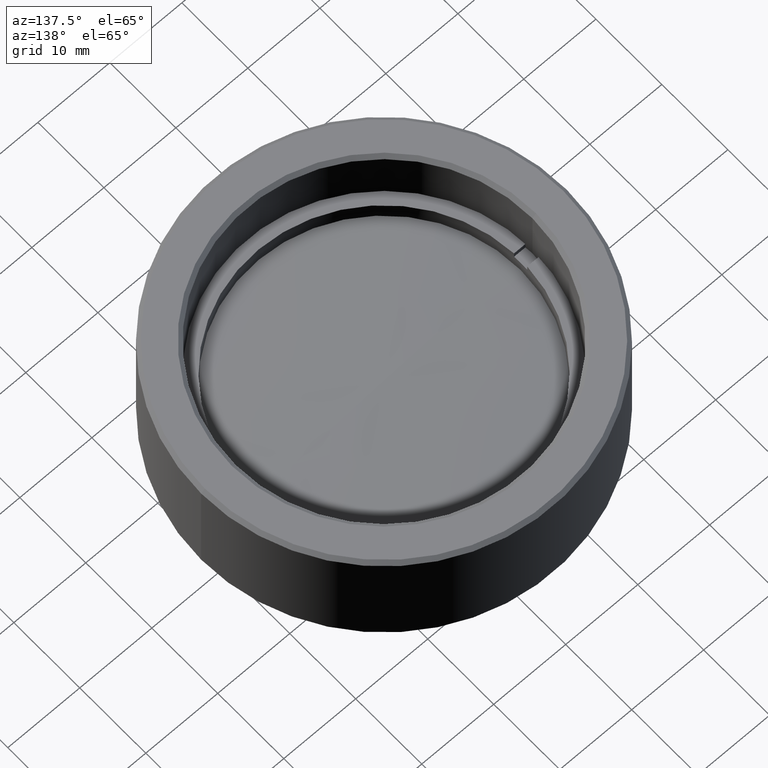
[diagram: clean part render]
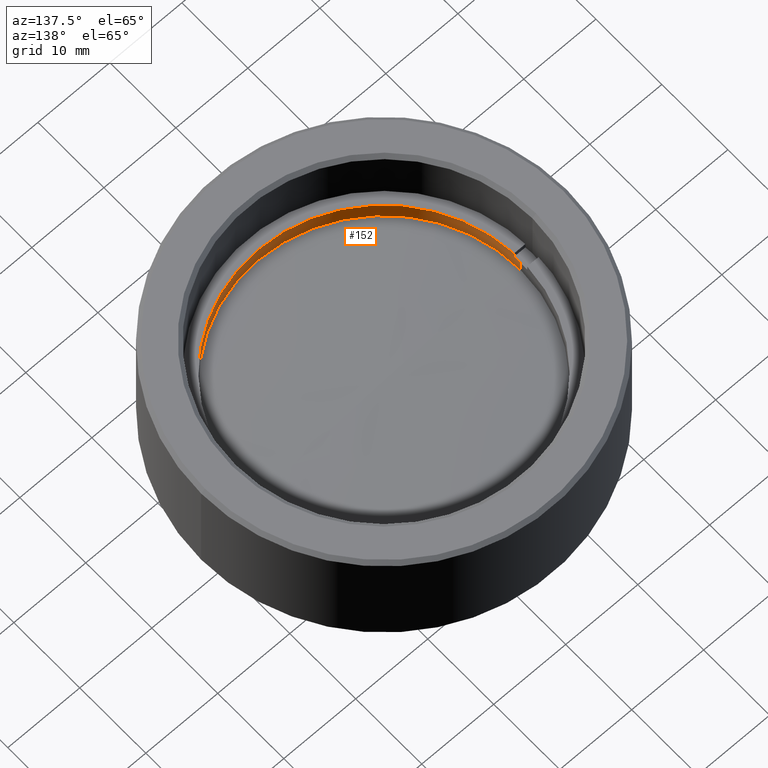
[diagram: same view with one face highlighted and labeled with its STEP entity id]
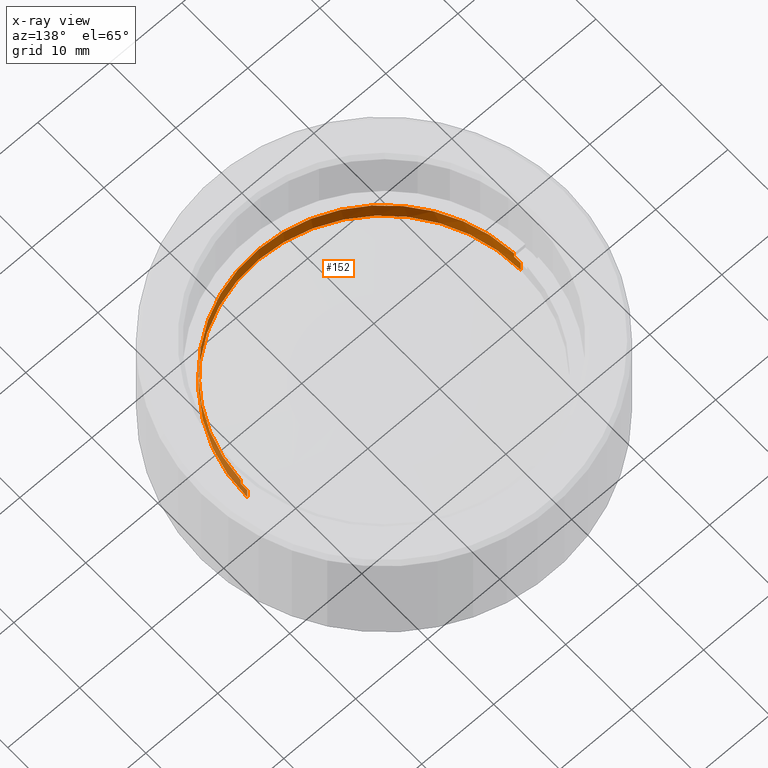
[diagram: x-ray of the same camera — body ghosted, the highlighted face saturated]
A machine part, auxiliary view. The second image highlights one B-rep face of the part: STEP entity #152.
The next image is the same camera in x-ray: the body ghosted, the highlighted face saturated — about 10% of this face is hidden behind the body in this view.
In plain terms, the highlighted cylindrical surface (partial cylindrical patch) has radius 19 mm, axis along (-0, -0, -1).
Its self-contained STEP definition (entity closure, byte-faithful):
#28 = EDGE_CURVE ( 'NONE', #1716, #1417, #1293, .T. ) ;
#31 = CARTESIAN_POINT ( 'NONE',  ( 0.000000000000000000, 0.000000000000000000, 0.000000000000000000 ) ) ;
#32 = CARTESIAN_POINT ( 'NONE',  ( 0.000000000000000000, 0.000000000000000000, 1.700000000000000178 ) ) ;
#71 = CARTESIAN_POINT ( 'NONE',  ( -18.97366596101027625, -1.000000000000000000, 1.700000000000000178 ) ) ;
#150 = VECTOR ( 'NONE', #1667, 1000.000000000000000 ) ;
#152 = ADVANCED_FACE ( 'NONE', ( #1619 ), #928, .F. ) ;
#155 = CARTESIAN_POINT ( 'NONE',  ( -18.97366596101027625, -1.000000000000000000, 2.500000000000000000 ) ) ;
#175 = DIRECTION ( 'NONE',  ( 1.000000000000000000, 0.000000000000000000, 0.000000000000000000 ) ) ;
#301 = ORIENTED_EDGE ( 'NONE', *, *, #939, .F. ) ;
#316 = CARTESIAN_POINT ( 'NONE',  ( -19.00000000000000000, 0.000000000000000000, 0.000000000000000000 ) ) ;
#351 = ORIENTED_EDGE ( 'NONE', *, *, #395, .T. ) ;
#357 = AXIS2_PLACEMENT_3D ( 'NONE', #32, #576, #436 ) ;
#370 = AXIS2_PLACEMENT_3D ( 'NONE', #1346, #1465, #523 ) ;
#375 = CIRCLE ( 'NONE', #1134, 19.00000000000000000 ) ;
#395 = EDGE_CURVE ( 'NONE', #1447, #629, #1513, .T. ) ;
#422 = ORIENTED_EDGE ( 'NONE', *, *, #694, .T. ) ;
#430 = DIRECTION ( 'NONE',  ( 0.000000000000000000, 0.000000000000000000, 1.000000000000000000 ) ) ;
#436 = DIRECTION ( 'NONE',  ( 1.000000000000000000, 0.000000000000000000, 0.000000000000000000 ) ) ;
#441 = CARTESIAN_POINT ( 'NONE',  ( 18.97366596101027625, -1.000000000000000000, 2.500000000000000000 ) ) ;
#523 = DIRECTION ( 'NONE',  ( -1.000000000000000000, 0.000000000000000000, 0.000000000000000000 ) ) ;
#549 = CARTESIAN_POINT ( 'NONE',  ( 18.97366596101027625, -1.000000000000000000, 1.700000000000000178 ) ) ;
#576 = DIRECTION ( 'NONE',  ( -0.000000000000000000, 0.000000000000000000, 1.000000000000000000 ) ) ;
#599 = EDGE_LOOP ( 'NONE', ( #1482, #1188, #301, #1449, #422, #741, #351, #1698 ) ) ;
#618 = VERTEX_POINT ( 'NONE', #71 ) ;
#629 = VERTEX_POINT ( 'NONE', #736 ) ;
#678 = DIRECTION ( 'NONE',  ( -0.000000000000000000, -0.000000000000000000, -1.000000000000000000 ) ) ;
#689 = VECTOR ( 'NONE', #1504, 1000.000000000000000 ) ;
#694 = EDGE_CURVE ( 'NONE', #1131, #618, #1654, .T. ) ;
#710 = LINE ( 'NONE', #964, #689 ) ;
#736 = CARTESIAN_POINT ( 'NONE',  ( 18.97366596101027625, -1.000000000000000000, 2.500000000000000000 ) ) ;
#741 = ORIENTED_EDGE ( 'NONE', *, *, #791, .F. ) ;
#791 = EDGE_CURVE ( 'NONE', #1447, #618, #1227, .T. ) ;
#798 = CARTESIAN_POINT ( 'NONE',  ( 19.00000000000000000, 2.326828918379970970E-15, 1.700000000000000178 ) ) ;
#809 = AXIS2_PLACEMENT_3D ( 'NONE', #1166, #430, #175 ) ;
#824 = LINE ( 'NONE', #441, #1339 ) ;
#829 = VERTEX_POINT ( 'NONE', #549 ) ;
#883 = AXIS2_PLACEMENT_3D ( 'NONE', #1263, #1235, #1370 ) ;
#928 = CYLINDRICAL_SURFACE ( 'NONE', #370, 19.00000000000000000 ) ;
#939 = EDGE_CURVE ( 'NONE', #986, #1417, #375, .T. ) ;
#964 = CARTESIAN_POINT ( 'NONE',  ( -19.00000000000000000, 0.000000000000000000, 2.500000000000000000 ) ) ;
#986 = VERTEX_POINT ( 'NONE', #316 ) ;
#1003 = CIRCLE ( 'NONE', #357, 19.00000000000000000 ) ;
#1012 = EDGE_CURVE ( 'NONE', #829, #629, #824, .T. ) ;
#1033 = VECTOR ( 'NONE', #678, 1000.000000000000000 ) ;
#1115 = DIRECTION ( 'NONE',  ( 0.000000000000000000, 0.000000000000000000, 1.000000000000000000 ) ) ;
#1123 = CARTESIAN_POINT ( 'NONE',  ( 19.00000000000000000, 2.326828918379970970E-15, 2.500000000000000000 ) ) ;
#1131 = VERTEX_POINT ( 'NONE', #1158 ) ;
#1134 = AXIS2_PLACEMENT_3D ( 'NONE', #31, #1115, #1257 ) ;
#1158 = CARTESIAN_POINT ( 'NONE',  ( -19.00000000000000000, 0.000000000000000000, 1.700000000000000178 ) ) ;
#1166 = CARTESIAN_POINT ( 'NONE',  ( 0.000000000000000000, 0.000000000000000000, 2.500000000000000000 ) ) ;
#1188 = ORIENTED_EDGE ( 'NONE', *, *, #28, .T. ) ;
#1227 = LINE ( 'NONE', #1628, #1033 ) ;
#1235 = DIRECTION ( 'NONE',  ( -0.000000000000000000, 0.000000000000000000, 1.000000000000000000 ) ) ;
#1257 = DIRECTION ( 'NONE',  ( 1.000000000000000000, 0.000000000000000000, 0.000000000000000000 ) ) ;
#1263 = CARTESIAN_POINT ( 'NONE',  ( 0.000000000000000000, 0.000000000000000000, 1.700000000000000178 ) ) ;
#1293 = LINE ( 'NONE', #1123, #150 ) ;
#1339 = VECTOR ( 'NONE', #1639, 1000.000000000000000 ) ;
#1346 = CARTESIAN_POINT ( 'NONE',  ( 0.000000000000000000, 0.000000000000000000, 2.500000000000000000 ) ) ;
#1370 = DIRECTION ( 'NONE',  ( 1.000000000000000000, 0.000000000000000000, 0.000000000000000000 ) ) ;
#1417 = VERTEX_POINT ( 'NONE', #1590 ) ;
#1447 = VERTEX_POINT ( 'NONE', #155 ) ;
#1449 = ORIENTED_EDGE ( 'NONE', *, *, #1514, .F. ) ;
#1465 = DIRECTION ( 'NONE',  ( -0.000000000000000000, -0.000000000000000000, -1.000000000000000000 ) ) ;
#1482 = ORIENTED_EDGE ( 'NONE', *, *, #1546, .T. ) ;
#1504 = DIRECTION ( 'NONE',  ( -0.000000000000000000, -0.000000000000000000, -1.000000000000000000 ) ) ;
#1513 = CIRCLE ( 'NONE', #809, 19.00000000000000000 ) ;
#1514 = EDGE_CURVE ( 'NONE', #1131, #986, #710, .T. ) ;
#1546 = EDGE_CURVE ( 'NONE', #829, #1716, #1003, .T. ) ;
#1590 = CARTESIAN_POINT ( 'NONE',  ( 19.00000000000000000, 2.326828918379970970E-15, 0.000000000000000000 ) ) ;
#1619 = FACE_OUTER_BOUND ( 'NONE', #599, .T. ) ;
#1628 = CARTESIAN_POINT ( 'NONE',  ( -18.97366596101027625, -1.000000000000000000, 2.500000000000000000 ) ) ;
#1639 = DIRECTION ( 'NONE',  ( 0.000000000000000000, 0.000000000000000000, 1.000000000000000000 ) ) ;
#1654 = CIRCLE ( 'NONE', #883, 19.00000000000000000 ) ;
#1667 = DIRECTION ( 'NONE',  ( -0.000000000000000000, -0.000000000000000000, -1.000000000000000000 ) ) ;
#1698 = ORIENTED_EDGE ( 'NONE', *, *, #1012, .F. ) ;
#1716 = VERTEX_POINT ( 'NONE', #798 ) ;